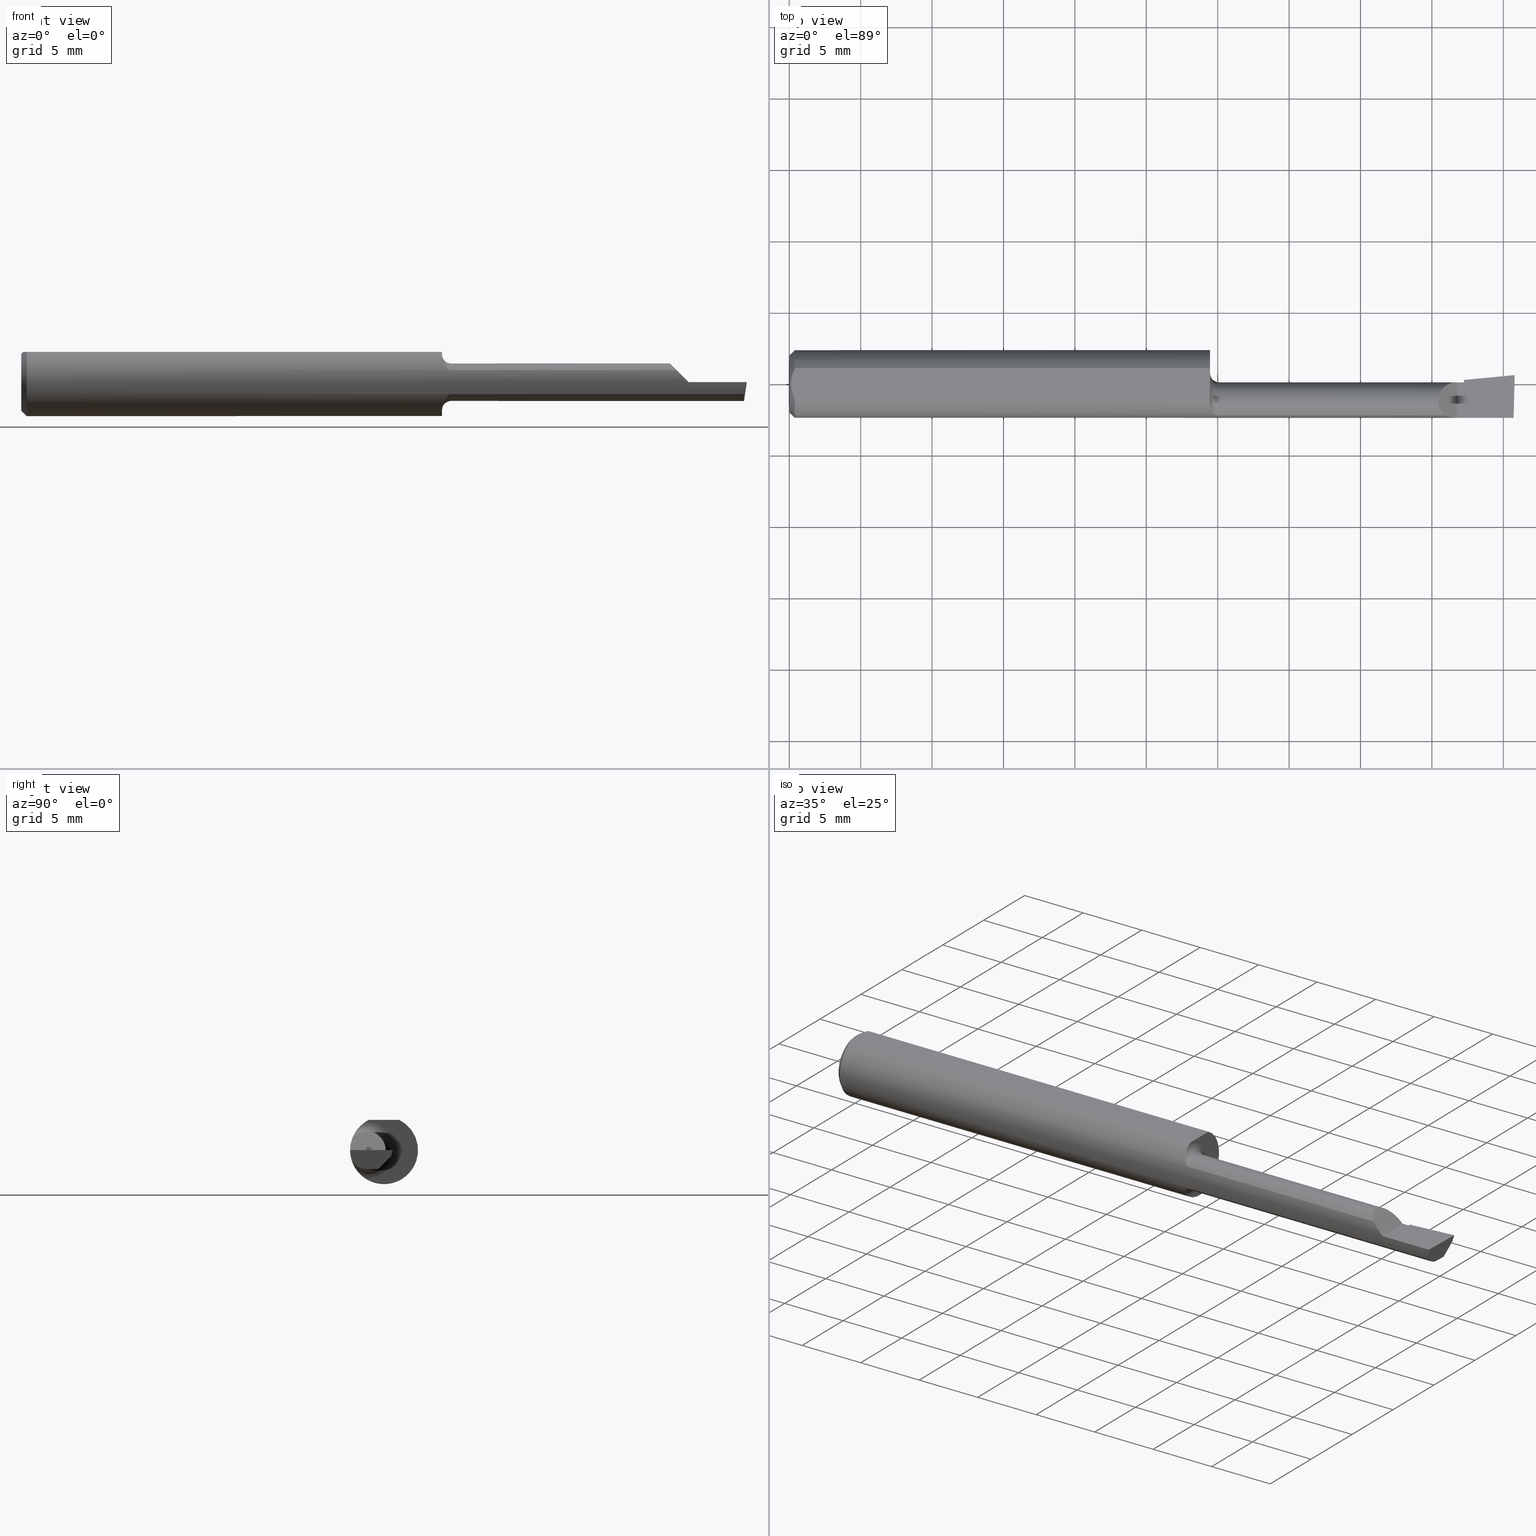
[diagram: canonical four-view strip — front | top / right | iso, engineering-drawing reading convention]
A machine part, canonical four-view strip (front | top / right | iso — engineering-drawing reading convention). The complete STEP part file that produces these views, byte-faithful:
ISO-10303-21;
HEADER;
FILE_DESCRIPTION (( 'STEP AP214' ),
    '1' );
FILE_NAME ('B120800.STEP',
    '2019-07-25T17:22:46',
    ( '' ),
    ( '' ),
    'SwSTEP 2.0',
    'SolidWorks 2018',
    '' );
FILE_SCHEMA (( 'AUTOMOTIVE_DESIGN' ));
ENDSEC;

DATA;
#1 = VERTEX_POINT ( 'NONE', #101 ) ;
#2 = DIRECTION ( 'NONE',  ( -1.000000000000000000, -0.0000000000000000000, -0.0000000000000000000 ) ) ;
#3 = DIRECTION ( 'NONE',  ( 0.0000000000000000000, 0.0000000000000000000, 1.000000000000000000 ) ) ;
#4 = CARTESIAN_POINT ( 'NONE',  ( 1.169440191089343717, -0.08177118545005539196, -0.04577359403162507140 ) ) ;
#5 = CARTESIAN_POINT ( 'NONE',  ( 0.01499999999999999598, 0.04209513035969837669, 0.08360000000000000764 ) ) ;
#6 =( GEOMETRIC_REPRESENTATION_CONTEXT ( 3 ) GLOBAL_UNCERTAINTY_ASSIGNED_CONTEXT ( ( #519 ) ) GLOBAL_UNIT_ASSIGNED_CONTEXT ( ( #228, #389, #536 ) ) REPRESENTATION_CONTEXT ( 'NONE', 'WORKASPACE' ) );
#7 = B_SPLINE_CURVE_WITH_KNOTS ( 'NONE', 3,
 ( #384, #124, #79, #518, #263, #30, #340, #387, #69, #390, #571, #341 ),
 .UNSPECIFIED., .F., .F.,
 ( 4, 2, 2, 2, 2, 4 ),
 ( 1.138943784590839172E-05, 0.0004225593089546699843, 0.0008337291800634315719, 0.001244899051172193485, 0.001450483986726571785, 0.001656068922280950302 ),
 .UNSPECIFIED. ) ;
#8 = CARTESIAN_POINT ( 'NONE',  ( 1.522499999999999964, -0.08761684210526324290, -0.03292793615611784575 ) ) ;
#9 = CARTESIAN_POINT ( 'NONE',  ( 1.859999999999999876, 0.005698073100777827603, -0.01700000000000000469 ) ) ;
#10 = ORIENTED_EDGE ( 'NONE', *, *, #395, .F. ) ;
#11 = EDGE_CURVE ( 'NONE', #537, #286, #163, .T. ) ;
#12 = PLANE ( 'NONE',  #86 ) ;
#13 = ORIENTED_EDGE ( 'NONE', *, *, #233, .T. ) ;
#14 =( BOUNDED_CURVE ( )  B_SPLINE_CURVE ( 3, ( #97, #457, #51, #459 ),
 .UNSPECIFIED., .F., .T. ) 
 B_SPLINE_CURVE_WITH_KNOTS ( ( 4, 4 ),
 ( 1.001259756638107623, 1.360746882514813461 ),
 .UNSPECIFIED. ) 
 CURVE ( )  GEOMETRIC_REPRESENTATION_ITEM ( )  RATIONAL_B_SPLINE_CURVE ( ( 1.000000000000000000, 0.9892597135044076673, 0.9892597135044076673, 1.000000000000000000 ) ) 
 REPRESENTATION_ITEM ( '' )  );
#15 = DIRECTION ( 'NONE',  ( -0.02617694830785904925, -0.9996573249755575929, -4.246274422243611542E-17 ) ) ;
#16 = CARTESIAN_POINT ( 'NONE',  ( 2.009953961983671267, 0.02535845752520198698, -6.829619984160658046E-17 ) ) ;
#17 = CONICAL_SURFACE ( 'NONE', #331, 0.09360000000000001652, 0.7853981633974601584 ) ;
#18 = CARTESIAN_POINT ( 'NONE',  ( 2.000000000000000000, -0.04749999999999999362, -0.05189999999999998087 ) ) ;
#19 = ORIENTED_EDGE ( 'NONE', *, *, #486, .T. ) ;
#20 = VERTEX_POINT ( 'NONE', #505 ) ;
#21 = DIRECTION ( 'NONE',  ( -2.972230601656782035E-18, -0.6963153109074924352, -0.7177360153954948085 ) ) ;
#22 = EDGE_CURVE ( 'NONE', #20, #489, #39, .T. ) ;
#23 = VECTOR ( 'NONE', #142, 39.37007874015748854 ) ;
#24 = FILL_AREA_STYLE_COLOUR ( '', #520 ) ;
#25 = VERTEX_POINT ( 'NONE', #54 ) ;
#26 = VERTEX_POINT ( 'NONE', #368 ) ;
#27 = EDGE_CURVE ( 'NONE', #149, #20, #403, .T. ) ;
#28 = CIRCLE ( 'NONE', #503, 0.05189999999999993924 ) ;
#29 = EDGE_CURVE ( 'NONE', #453, #128, #327, .T. ) ;
#30 = CARTESIAN_POINT ( 'NONE',  ( 1.167170565689160888, -0.07921348361094636414, 0.05012018735743086623 ) ) ;
#31 = PLANE ( 'NONE',  #132 ) ;
#32 = ORIENTED_EDGE ( 'NONE', *, *, #420, .T. ) ;
#33 = ORIENTED_EDGE ( 'NONE', *, *, #454, .F. ) ;
#34 = VECTOR ( 'NONE', #480, 39.37007874015748143 ) ;
#35 = ORIENTED_EDGE ( 'NONE', *, *, #190, .F. ) ;
#36 = AXIS2_PLACEMENT_3D ( 'NONE', #556, #376, #332 ) ;
#37 = DIRECTION ( 'NONE',  ( 0.0000000000000000000, -1.000000000000000000, 0.0000000000000000000 ) ) ;
#38 = DIRECTION ( 'NONE',  ( -1.000000000000000000, 4.268512490100411279E-18, -0.0000000000000000000 ) ) ;
#39 = CIRCLE ( 'NONE', #428, 0.09360000000000001652 ) ;
#40 = CARTESIAN_POINT ( 'NONE',  ( 2.000000000000000000, -0.2500000000000000555, -6.829619984160658046E-17 ) ) ;
#41 = ORIENTED_EDGE ( 'NONE', *, *, #45, .F. ) ;
#42 = AXIS2_PLACEMENT_3D ( 'NONE', #66, #165, #298 ) ;
#43 = CARTESIAN_POINT ( 'NONE',  ( 1.167214764395544391, -0.07927709071642491390, -0.05002561729526815160 ) ) ;
#44 = CIRCLE ( 'NONE', #382, 0.09360000000000001652 ) ;
#45 = EDGE_CURVE ( 'NONE', #1, #172, #569, .T. ) ;
#46 = CARTESIAN_POINT ( 'NONE',  ( 2.000000000000000000, -0.04749999999999999362, -0.05189999999999998087 ) ) ;
#47 = ADVANCED_FACE ( 'NONE', ( #260 ), #12, .F. ) ;
#48 = LINE ( 'NONE', #303, #516 ) ;
#49 = CARTESIAN_POINT ( 'NONE',  ( 0.0000000000000000000, 0.0000000000000000000, 0.0000000000000000000 ) ) ;
#50 = EDGE_LOOP ( 'NONE', ( #81, #95, #178, #19, #264, #362 ) ) ;
#51 = CARTESIAN_POINT ( 'NONE',  ( 1.995524967455633902, -0.09360000000000001652, -0.01127681812736613248 ) ) ;
#52 = CARTESIAN_POINT ( 'NONE',  ( 1.522499999999999964, -0.08761684210526324290, 0.03292793615611784575 ) ) ;
#53 = VECTOR ( 'NONE', #415, 39.37007874015748143 ) ;
#54 = CARTESIAN_POINT ( 'NONE',  ( 1.840000000000000080, 0.004399999999999856283, 1.959434878635762025E-17 ) ) ;
#55 = CARTESIAN_POINT ( 'NONE',  ( 2.000000000000002220, 0.02440000000001009070, 3.223447241508514858E-14 ) ) ;
#56 = AXIS2_PLACEMENT_3D ( 'NONE', #49, #413, #411 ) ;
#57 = ORIENTED_EDGE ( 'NONE', *, *, #420, .F. ) ;
#58 = EDGE_CURVE ( 'NONE', #286, #537, #444, .T. ) ;
#59 = DIRECTION ( 'NONE',  ( 0.0000000000000000000, 0.0000000000000000000, 1.000000000000000000 ) ) ;
#60 = PRODUCT ( 'B120800', 'B120800', '', ( #576 ) ) ;
#61 = CLOSED_SHELL ( 'NONE', ( #284, #589, #497, #96, #407, #195, #183, #99, #237, #316, #398, #443, #199, #138, #500, #244, #47 ) ) ;
#62 = CARTESIAN_POINT ( 'NONE',  ( 1.859999999999999876, -0.04749999999999999362, -0.05189999999999998087 ) ) ;
#63 = LINE ( 'NONE', #62, #53 ) ;
#64 = CARTESIAN_POINT ( 'NONE',  ( 1.807072063843881971, -0.08761684210526325678, 0.03292793615611783187 ) ) ;
#65 = DIRECTION ( 'NONE',  ( -1.000000000000000000, 4.268512490100411279E-18, 0.0000000000000000000 ) ) ;
#66 = CARTESIAN_POINT ( 'NONE',  ( 2.010452112766631050, 0.02018496383838343580, -0.01700000000000000122 ) ) ;
#67 = VECTOR ( 'NONE', #584, 39.37007874015748143 ) ;
#68 = VECTOR ( 'NONE', #324, 39.37007874015748143 ) ;
#69 = CARTESIAN_POINT ( 'NONE',  ( 1.175620214409630604, -0.08570056439211902466, 0.03767842731144282337 ) ) ;
#70 = EDGE_LOOP ( 'NONE', ( #305, #338 ) ) ;
#71 = CARTESIAN_POINT ( 'NONE',  ( 0.0000000000000000000, 0.0000000000000000000, 0.0000000000000000000 ) ) ;
#72 =( GEOMETRIC_REPRESENTATION_CONTEXT ( 3 ) GLOBAL_UNCERTAINTY_ASSIGNED_CONTEXT ( ( #456 ) ) GLOBAL_UNIT_ASSIGNED_CONTEXT ( ( #429, #478, #214 ) ) REPRESENTATION_CONTEXT ( 'NONE', 'WORKASPACE' ) );
#73 = EDGE_CURVE ( 'NONE', #400, #26, #527, .T. ) ;
#74 =( LENGTH_UNIT ( ) NAMED_UNIT ( * ) SI_UNIT ( $, .METRE. ) );
#75 =( CONVERSION_BASED_UNIT ( 'INCH', #265 ) LENGTH_UNIT ( ) NAMED_UNIT ( #279 ) );
#76 = ORIENTED_EDGE ( 'NONE', *, *, #22, .T. ) ;
#77 = SURFACE_SIDE_STYLE ('',( #408 ) ) ;
#78 = UNCERTAINTY_MEASURE_WITH_UNIT (LENGTH_MEASURE( 1.000000000000000082E-05 ), #75, 'distance_accuracy_value', 'NONE');
#79 = CARTESIAN_POINT ( 'NONE',  ( 1.160447921123109349, -0.06231628215915101937, 0.07004382716008761278 ) ) ;
#80 = FACE_OUTER_BOUND ( 'NONE', #156, .T. ) ;
#81 = ORIENTED_EDGE ( 'NONE', *, *, #29, .T. ) ;
#82 = ORIENTED_EDGE ( 'NONE', *, *, #525, .T. ) ;
#83 = ORIENTED_EDGE ( 'NONE', *, *, #448, .T. ) ;
#84 = EDGE_CURVE ( 'NONE', #282, #140, #193, .T. ) ;
#85 = FACE_OUTER_BOUND ( 'NONE', #345, .T. ) ;
#86 = AXIS2_PLACEMENT_3D ( 'NONE', #418, #201, #504 ) ;
#87 = CIRCLE ( 'NONE', #247, 0.07689999999999989899 ) ;
#88 = ORIENTED_EDGE ( 'NONE', *, *, #514, .T. ) ;
#89 = AXIS2_PLACEMENT_3D ( 'NONE', #203, #374, #161 ) ;
#90 = LINE ( 'NONE', #561, #544 ) ;
#91 = CARTESIAN_POINT ( 'NONE',  ( 0.0000000000000000000, 0.0000000000000000000, 0.0000000000000000000 ) ) ;
#92 = CARTESIAN_POINT ( 'NONE',  ( 1.991784456001939541, -0.07759022324566731965, -0.04514359047872656266 ) ) ;
#93 = VECTOR ( 'NONE', #291, 39.37007874015748143 ) ;
#94 = CARTESIAN_POINT ( 'NONE',  ( 1.992583253560377576, -0.01539402727707556325, -0.05189999999999998087 ) ) ;
#95 = ORIENTED_EDGE ( 'NONE', *, *, #399, .F. ) ;
#96 = ADVANCED_FACE ( 'NONE', ( #546 ), #104, .F. ) ;
#97 = CARTESIAN_POINT ( 'NONE',  ( 1.993022307651335812, -0.08761684210526324290, -0.03292793615611784575 ) ) ;
#98 = CARTESIAN_POINT ( 'NONE',  ( 1.859999999999999876, -0.2500000000000000555, 8.608030207862190690E-18 ) ) ;
#99 = ADVANCED_FACE ( 'NONE', ( #488 ), #373, .F. ) ;
#100 = CARTESIAN_POINT ( 'NONE',  ( 1.859999999999999876, -0.02123896744732974712, -0.04476570304672526646 ) ) ;
#101 = CARTESIAN_POINT ( 'NONE',  ( 1.859999999999999876, 0.004399999999999983785, 1.030335658007946834E-15 ) ) ;
#102 = AXIS2_PLACEMENT_3D ( 'NONE', #294, #65, #513 ) ;
#103 = ORIENTED_EDGE ( 'NONE', *, *, #587, .F. ) ;
#104 = PLANE ( 'NONE',  #582 ) ;
#105 = VERTEX_POINT ( 'NONE', #559 ) ;
#106 = ORIENTED_EDGE ( 'NONE', *, *, #262, .F. ) ;
#107 = CARTESIAN_POINT ( 'NONE',  ( 0.009539353699420828961, -0.02875682547511369466, 0.08360000000000000764 ) ) ;
#108 = DIRECTION ( 'NONE',  ( -0.7071067811865516806, 0.0000000000000000000, 0.7071067811865433539 ) ) ;
#109 = DIRECTION ( 'NONE',  ( -1.000000000000000000, -0.0000000000000000000, -0.0000000000000000000 ) ) ;
#110 = LINE ( 'NONE', #240, #23 ) ;
#111 = FACE_OUTER_BOUND ( 'NONE', #336, .T. ) ;
#112 = DIRECTION ( 'NONE',  ( 1.000000000000000000, -4.268512490100411279E-18, 0.0000000000000000000 ) ) ;
#113 = ORIENTED_EDGE ( 'NONE', *, *, #117, .T. ) ;
#114 = DIRECTION ( 'NONE',  ( 0.0000000000000000000, -1.000000000000000000, 0.0000000000000000000 ) ) ;
#115 = ORIENTED_EDGE ( 'NONE', *, *, #313, .F. ) ;
#116 = CARTESIAN_POINT ( 'NONE',  ( 1.991748187365210754, -0.04728391868154190048, -0.05189999999999998087 ) ) ;
#117 = EDGE_CURVE ( 'NONE', #564, #25, #314, .T. ) ;
#118 = DIRECTION ( 'NONE',  ( 0.0000000000000000000, 1.000000000000000000, 0.0000000000000000000 ) ) ;
#119 =( LENGTH_UNIT ( ) NAMED_UNIT ( * ) SI_UNIT ( $, .METRE. ) );
#120 = EDGE_LOOP ( 'NONE', ( #103, #292, #157, #335, #300 ) ) ;
#121 = CARTESIAN_POINT ( 'NONE',  ( 0.0000000000000000000, 1.054420894065869177E-17, 0.07859999999999965625 ) ) ;
#122 = AXIS2_PLACEMENT_3D ( 'NONE', #231, #187, #442 ) ;
#123 = VECTOR ( 'NONE', #21, 39.37007874015748854 ) ;
#124 = CARTESIAN_POINT ( 'NONE',  ( 1.160000000000000364, -0.05819923687593512446, 0.07350986718065719017 ) ) ;
#125 = TOROIDAL_SURFACE ( 'NONE', #36, 0.07689999999999989899, 0.02499999999999993894 ) ;
#126 = CARTESIAN_POINT ( 'NONE',  ( 1.807072063843881971, -0.08761684210526325678, 0.03292793615611783187 ) ) ;
#127 = ORIENTED_EDGE ( 'NONE', *, *, #167, .T. ) ;
#128 = VERTEX_POINT ( 'NONE', #509 ) ;
#129 = DIRECTION ( 'NONE',  ( 1.000000000000000000, 0.0000000000000000000, 0.0000000000000000000 ) ) ;
#130 = VERTEX_POINT ( 'NONE', #562 ) ;
#131 = PRODUCT_DEFINITION_SHAPE ( 'NONE', 'NONE',  #573 ) ;
#132 = AXIS2_PLACEMENT_3D ( 'NONE', #40, #270, #272 ) ;
#133 = DIRECTION ( 'NONE',  ( -4.268512490100412049E-18, -1.000000000000000000, 0.0000000000000000000 ) ) ;
#134 = VERTEX_POINT ( 'NONE', #9 ) ;
#135 = AXIS2_PLACEMENT_3D ( 'NONE', #349, #350, #567 ) ;
#136 = EDGE_LOOP ( 'NONE', ( #241, #508, #540, #392 ) ) ;
#137 = B_SPLINE_CURVE_WITH_KNOTS ( 'NONE', 3,
 ( #552, #506, #107, #511, #151, #472 ),
 .UNSPECIFIED., .F., .F.,
 ( 4, 2, 4 ),
 ( 0.005785415439423114564, 0.006333348270144337384, 0.006881281100865560205 ),
 .UNSPECIFIED. ) ;
#138 = ADVANCED_FACE ( 'NONE', ( #309 ), #463, .T. ) ;
#139 = CARTESIAN_POINT ( 'NONE',  ( 2.215357982367770727E-19, 0.004399999999999949958, 1.030335658007946046E-15 ) ) ;
#140 = VERTEX_POINT ( 'NONE', #64 ) ;
#141 = EDGE_LOOP ( 'NONE', ( #517, #553, #541 ) ) ;
#142 = DIRECTION ( 'NONE',  ( 0.02617694830785904231, 0.9996573249755575929, -1.459184416195337162E-17 ) ) ;
#143 = EDGE_CURVE ( 'NONE', #172, #354, #299, .T. ) ;
#144 = CARTESIAN_POINT ( 'NONE',  ( 0.0000000000000000000, -0.04209513035969835587, 0.08360000000000000764 ) ) ;
#145 = CARTESIAN_POINT ( 'NONE',  ( 0.01499999999999999598, 0.0000000000000000000, 0.0000000000000000000 ) ) ;
#146 = DIMENSIONAL_EXPONENTS ( 1.000000000000000000, 0.0000000000000000000, 0.0000000000000000000, 0.0000000000000000000, 0.0000000000000000000, 0.0000000000000000000, 0.0000000000000000000 ) ;
#147 = EDGE_CURVE ( 'NONE', #475, #570, #87, .T. ) ;
#148 = CARTESIAN_POINT ( 'NONE',  ( 0.005000000000000225618, 0.007308422719211825694, 0.08360000000000000764 ) ) ;
#149 = VERTEX_POINT ( 'NONE', #474 ) ;
#150 = ORIENTED_EDGE ( 'NONE', *, *, #27, .T. ) ;
#151 = CARTESIAN_POINT ( 'NONE',  ( 0.005000000000000227353, -0.007328888879231044290, 0.08360000000000000764 ) ) ;
#152 = CARTESIAN_POINT ( 'NONE',  ( 1.840000000000000080, -0.2500000000000000555, 1.959434878635762025E-17 ) ) ;
#153 = DIRECTION ( 'NONE',  ( 0.0000000000000000000, -1.000000000000000000, 0.0000000000000000000 ) ) ;
#154 = CIRCLE ( 'NONE', #197, 0.05189999999999998781 ) ;
#155 = CARTESIAN_POINT ( 'NONE',  ( 1.840000000000000080, -0.2500000000000000555, 1.959434878635762025E-17 ) ) ;
#156 = EDGE_LOOP ( 'NONE', ( #592, #276, #416, #254, #328, #378, #577, #285, #115, #320, #88, #369, #423 ) ) ;
#157 = ORIENTED_EDGE ( 'NONE', *, *, #492, .T. ) ;
#158 = FACE_OUTER_BOUND ( 'NONE', #164, .T. ) ;
#159 = CARTESIAN_POINT ( 'NONE',  ( 1.859999999999999876, -0.04749999999999999362, 0.0000000000000000000 ) ) ;
#160 = DIRECTION ( 'NONE',  ( -0.9953961983671800740, -0.09584575252021031166, 0.0000000000000000000 ) ) ;
#161 = DIRECTION ( 'NONE',  ( 4.268512490100411279E-18, 1.000000000000000000, 0.0000000000000000000 ) ) ;
#162 = PLANE ( 'NONE',  #437 ) ;
#163 = CIRCLE ( 'NONE', #56, 0.07859999999999965625 ) ;
#164 = EDGE_LOOP ( 'NONE', ( #535, #32, #306, #542 ) ) ;
#165 = DIRECTION ( 'NONE',  ( -0.06894566448119622548, 0.7160281025913035613, -0.6946583704589933683 ) ) ;
#166 = DIRECTION ( 'NONE',  ( 0.9953961983671787417, 0.09584575252022461966, -5.467869873542577569E-16 ) ) ;
#167 = EDGE_CURVE ( 'NONE', #510, #134, #48, .T. ) ;
#168 = DIRECTION ( 'NONE',  ( -2.972230601656782035E-18, -0.6963153109074924352, -0.7177360153954948085 ) ) ;
#169 = DIRECTION ( 'NONE',  ( 1.000000000000000000, -4.268512490100411279E-18, 0.0000000000000000000 ) ) ;
#170 = ORIENTED_EDGE ( 'NONE', *, *, #262, .T. ) ;
#171 = CARTESIAN_POINT ( 'NONE',  ( 1.859999999999999876, 0.01091953325234439054, 0.0000000000000000000 ) ) ;
#172 = VERTEX_POINT ( 'NONE', #533 ) ;
#173 = VECTOR ( 'NONE', #168, 39.37007874015748854 ) ;
#174 = LINE ( 'NONE', #46, #352 ) ;
#175 = MANIFOLD_SOLID_BREP ( 'Extrude7', #61 ) ;
#176 = VECTOR ( 'NONE', #166, 39.37007874015748143 ) ;
#177 = EDGE_CURVE ( 'NONE', #564, #140, #184, .T. ) ;
#178 = ORIENTED_EDGE ( 'NONE', *, *, #186, .T. ) ;
#179 = PLANE ( 'NONE',  #393 ) ;
#180 = VECTOR ( 'NONE', #526, 39.37007874015748143 ) ;
#181 = EDGE_CURVE ( 'NONE', #105, #475, #361, .T. ) ;
#182 = DIRECTION ( 'NONE',  ( -1.000000000000000000, 4.268512490100411279E-18, -0.0000000000000000000 ) ) ;
#183 = ADVANCED_FACE ( 'NONE', ( #483 ), #31, .F. ) ;
#184 =( BOUNDED_CURVE ( )  B_SPLINE_CURVE ( 3, ( #531, #391, #307, #126 ),
 .UNSPECIFIED., .F., .T. ) 
 B_SPLINE_CURVE_WITH_KNOTS ( ( 4, 4 ),
 ( 4.712388980384689674, 5.071876106261395734 ),
 .UNSPECIFIED. ) 
 CURVE ( )  GEOMETRIC_REPRESENTATION_ITEM ( )  RATIONAL_B_SPLINE_CURVE ( ( 1.000000000000000000, 0.9892597135044076673, 0.9892597135044076673, 1.000000000000000000 ) ) 
 REPRESENTATION_ITEM ( '' )  );
#185 = PLANE ( 'NONE',  #346 ) ;
#186 = EDGE_CURVE ( 'NONE', #400, #510, #250, .T. ) ;
#187 = DIRECTION ( 'NONE',  ( 1.000000000000000000, -4.268512490100411279E-18, 0.0000000000000000000 ) ) ;
#188 = CARTESIAN_POINT ( 'NONE',  ( 0.005981829149300843529, 0.01454044632356567453, 0.08360000000000003539 ) ) ;
#189 = CARTESIAN_POINT ( 'NONE',  ( 1.160000000000000142, -0.05372210526315807089, -0.07664786628533221124 ) ) ;
#190 = EDGE_CURVE ( 'NONE', #583, #275, #230, .T. ) ;
#191 = CARTESIAN_POINT ( 'NONE',  ( 1.996868812538701299, -0.01498137488205841111, -0.05189999999999998087 ) ) ;
#192 = LINE ( 'NONE', #539, #67 ) ;
#193 = LINE ( 'NONE', #52, #452 ) ;
#194 = DIRECTION ( 'NONE',  ( -1.000000000000000000, -0.0000000000000000000, -0.0000000000000000000 ) ) ;
#195 = ADVANCED_FACE ( 'NONE', ( #111 ), #179, .F. ) ;
#196 = CARTESIAN_POINT ( 'NONE',  ( 1.996910061254835833, -0.09360000000000009979, -6.663204267364653954E-17 ) ) ;
#197 = AXIS2_PLACEMENT_3D ( 'NONE', #588, #182, #37 ) ;
#198 = CARTESIAN_POINT ( 'NONE',  ( 1.807072063843881971, -0.08761684210526325678, 0.03292793615611783187 ) ) ;
#199 = ADVANCED_FACE ( 'NONE', ( #451 ), #534, .T. ) ;
#200 = EDGE_CURVE ( 'NONE', #25, #1, #223, .T. ) ;
#201 = DIRECTION ( 'NONE',  ( -0.9922060308645500593, 0.02598182930467936302, 0.1218693434051320162 ) ) ;
#202 = CIRCLE ( 'NONE', #485, 0.05189999999999998781 ) ;
#203 = CARTESIAN_POINT ( 'NONE',  ( 1.160000000000000142, 0.02939999999999991231, 0.0000000000000000000 ) ) ;
#204 = ORIENTED_EDGE ( 'NONE', *, *, #186, .F. ) ;
#205 = ORIENTED_EDGE ( 'NONE', *, *, #224, .T. ) ;
#206 = CARTESIAN_POINT ( 'NONE',  ( 0.01499999999999999944, -0.04209513035969835587, 0.08360000000000000764 ) ) ;
#207 = DIRECTION ( 'NONE',  ( -2.429359850419095604E-34, -4.268512490100410663E-17, 1.000000000000000000 ) ) ;
#208 = CARTESIAN_POINT ( 'NONE',  ( 1.859999999999999876, -0.01401885001904128354, -0.03732347359622881916 ) ) ;
#209 = DIRECTION ( 'NONE',  ( -1.000000000000000000, -0.0000000000000000000, -0.0000000000000000000 ) ) ;
#210 = ORIENTED_EDGE ( 'NONE', *, *, #557, .T. ) ;
#211 = ORIENTED_EDGE ( 'NONE', *, *, #216, .F. ) ;
#212 = CARTESIAN_POINT ( 'NONE',  ( 0.0000000000000000000, 0.04209513035969837669, 0.08360000000000000764 ) ) ;
#213 = CARTESIAN_POINT ( 'NONE',  ( 1.160000000000000142, -0.05372210526315807089, -0.07664786628533221124 ) ) ;
#214 =( NAMED_UNIT ( * ) SI_UNIT ( $, .STERADIAN. ) SOLID_ANGLE_UNIT ( ) );
#215 = ORIENTED_EDGE ( 'NONE', *, *, #147, .F. ) ;
#216 = EDGE_CURVE ( 'NONE', #347, #564, #192, .T. ) ;
#217 = ORIENTED_EDGE ( 'NONE', *, *, #301, .T. ) ;
#218 = EDGE_LOOP ( 'NONE', ( #401, #555, #170, #83 ) ) ;
#219 = AXIS2_PLACEMENT_3D ( 'NONE', #71, #351, #129 ) ;
#220 = LINE ( 'NONE', #380, #288 ) ;
#221 = SURFACE_STYLE_USAGE ( .BOTH. , #77 ) ;
#222 = FILL_AREA_STYLE_COLOUR ( '', #367 ) ;
#223 = LINE ( 'NONE', #139, #515 ) ;
#224 = EDGE_CURVE ( 'NONE', #1, #583, #154, .T. ) ;
#225 = ORIENTED_EDGE ( 'NONE', *, *, #348, .F. ) ;
#226 = EDGE_LOOP ( 'NONE', ( #269, #127, #460, #321 ) ) ;
#227 = PRESENTATION_STYLE_ASSIGNMENT (( #342 ) ) ;
#228 =( CONVERSION_BASED_UNIT ( 'INCH', #259 ) LENGTH_UNIT ( ) NAMED_UNIT ( #146 ) );
#229 = AXIS2_PLACEMENT_3D ( 'NONE', #396, #38, #133 ) ;
#230 = LINE ( 'NONE', #356, #239 ) ;
#231 = CARTESIAN_POINT ( 'NONE',  ( 1.160000000000000142, 0.0000000000000000000, 0.0000000000000000000 ) ) ;
#232 = ORIENTED_EDGE ( 'NONE', *, *, #177, .F. ) ;
#233 = EDGE_CURVE ( 'NONE', #275, #445, #202, .T. ) ;
#234 = ADVANCED_BREP_SHAPE_REPRESENTATION ( 'B120800', ( #175, #219 ), #482 ) ;
#235 = ORIENTED_EDGE ( 'NONE', *, *, #538, .F. ) ;
#236 = CIRCLE ( 'NONE', #524, 0.09360000000000001652 ) ;
#237 = ADVANCED_FACE ( 'NONE', ( #590 ), #359, .F. ) ;
#238 = DIRECTION ( 'NONE',  ( 0.0000000000000000000, 0.0000000000000000000, -1.000000000000000000 ) ) ;
#239 = VECTOR ( 'NONE', #543, 39.37007874015748854 ) ;
#240 = CARTESIAN_POINT ( 'NONE',  ( 1.992819506803470420, -0.2498119721683277061, -6.435184055121686760E-17 ) ) ;
#241 = ORIENTED_EDGE ( 'NONE', *, *, #45, .T. ) ;
#242 = ORIENTED_EDGE ( 'NONE', *, *, #587, .T. ) ;
#243 = DIRECTION ( 'NONE',  ( -1.000000000000000000, 4.268512490100411279E-18, 0.0000000000000000000 ) ) ;
#244 = ADVANCED_FACE ( 'NONE', ( #318 ), #185, .F. ) ;
#245 = CARTESIAN_POINT ( 'NONE',  ( 0.0000000000000000000, 0.0000000000000000000, 0.0000000000000000000 ) ) ;
#246 = CARTESIAN_POINT ( 'NONE',  ( 1.993022307651335812, -0.08761684210526324290, -0.03292793615611784575 ) ) ;
#247 = AXIS2_PLACEMENT_3D ( 'NONE', #344, #295, #114 ) ;
#248 = DIRECTION ( 'NONE',  ( 1.000000000000000000, -4.268512490100411279E-18, 0.0000000000000000000 ) ) ;
#249 = MECHANICAL_DESIGN_GEOMETRIC_PRESENTATION_REPRESENTATION (  '', ( #522 ), #6 ) ;
#250 = LINE ( 'NONE', #581, #353 ) ;
#251 = PLANE ( 'NONE',  #102 ) ;
#252 = ORIENTED_EDGE ( 'NONE', *, *, #557, .F. ) ;
#253 = DIRECTION ( 'NONE',  ( -0.9953961983671800740, -0.09584575252021031166, -2.116984158397002112E-18 ) ) ;
#254 = ORIENTED_EDGE ( 'NONE', *, *, #177, .T. ) ;
#255 = EDGE_LOOP ( 'NONE', ( #502, #593 ) ) ;
#256 = CARTESIAN_POINT ( 'NONE',  ( 1.859999999999999876, -0.01401885001904128354, -0.03732347359622881916 ) ) ;
#257 = APPLICATION_CONTEXT ( 'automotive_design' ) ;
#258 = CARTESIAN_POINT ( 'NONE',  ( 1.859999999999999876, -0.001959391508022435748, -0.02489303071504986309 ) ) ;
#259 = LENGTH_MEASURE_WITH_UNIT ( LENGTH_MEASURE( 0.02539999999999999897 ), #487 );
#260 = FACE_OUTER_BOUND ( 'NONE', #50, .T. ) ;
#261 = FACE_OUTER_BOUND ( 'NONE', #136, .T. ) ;
#262 = EDGE_CURVE ( 'NONE', #128, #445, #174, .T. ) ;
#263 = CARTESIAN_POINT ( 'NONE',  ( 1.163573898438561072, -0.07331853621787791375, 0.05840549129485480412 ) ) ;
#264 = ORIENTED_EDGE ( 'NONE', *, *, #290, .F. ) ;
#265 = LENGTH_MEASURE_WITH_UNIT ( LENGTH_MEASURE( 0.02539999999999999897 ), #119 );
#266 = EDGE_CURVE ( 'NONE', #377, #570, #449, .T. ) ;
#267 = DIRECTION ( 'NONE',  ( 0.0000000000000000000, -1.189000693621284344E-16, -1.000000000000000000 ) ) ;
#268 = EDGE_CURVE ( 'NONE', #172, #134, #471, .T. ) ;
#269 = ORIENTED_EDGE ( 'NONE', *, *, #486, .F. ) ;
#270 = DIRECTION ( 'NONE',  ( -5.493159289247764363E-16, 0.0000000000000000000, -1.000000000000000000 ) ) ;
#271 = CARTESIAN_POINT ( 'NONE',  ( 2.000000000000000000, 0.1436000000000000332, 0.08359999999999999376 ) ) ;
#272 = DIRECTION ( 'NONE',  ( -1.000000000000000000, 0.0000000000000000000, 5.493159289247764363E-16 ) ) ;
#273 = AXIS2_PLACEMENT_3D ( 'NONE', #91, #402, #238 ) ;
#274 = DIRECTION ( 'NONE',  ( 0.1053106618241606840, 0.6976485211320174740, 0.7086580314005240799 ) ) ;
#275 = VERTEX_POINT ( 'NONE', #100 ) ;
#276 = ORIENTED_EDGE ( 'NONE', *, *, #386, .T. ) ;
#277 = ORIENTED_EDGE ( 'NONE', *, *, #84, .T. ) ;
#278 = CARTESIAN_POINT ( 'NONE',  ( 0.0000000000000000000, 0.0000000000000000000, -0.07859999999999965625 ) ) ;
#279 = DIMENSIONAL_EXPONENTS ( 1.000000000000000000, 0.0000000000000000000, 0.0000000000000000000, 0.0000000000000000000, 0.0000000000000000000, 0.0000000000000000000, 0.0000000000000000000 ) ;
#280 = LINE ( 'NONE', #116, #330 ) ;
#281 = DIRECTION ( 'NONE',  ( 1.000000000000000000, 0.0000000000000000000, 0.0000000000000000000 ) ) ;
#282 = VERTEX_POINT ( 'NONE', #283 ) ;
#283 = CARTESIAN_POINT ( 'NONE',  ( 1.185000000000000053, -0.08761684210526317351, 0.03292793615611785268 ) ) ;
#284 = ADVANCED_FACE ( 'NONE', ( #532 ), #17, .T. ) ;
#285 = ORIENTED_EDGE ( 'NONE', *, *, #348, .T. ) ;
#286 = VERTEX_POINT ( 'NONE', #278 ) ;
#287 = CARTESIAN_POINT ( 'NONE',  ( 1.161744805833127003, -0.07033817883199360022, -0.06260462116753089112 ) ) ;
#288 = VECTOR ( 'NONE', #372, 39.37007874015748143 ) ;
#289 = DIRECTION ( 'NONE',  ( -0.7071067811865433539, 0.0000000000000000000, -0.7071067811865516806 ) ) ;
#290 = EDGE_CURVE ( 'NONE', #347, #354, #110, .T. ) ;
#291 = DIRECTION ( 'NONE',  ( 4.268512490100411279E-18, 1.000000000000000000, -2.344761903626518103E-33 ) ) ;
#292 = ORIENTED_EDGE ( 'NONE', *, *, #58, .F. ) ;
#293 = LINE ( 'NONE', #256, #173 ) ;
#294 = CARTESIAN_POINT ( 'NONE',  ( 1.859999999999999876, 0.01091953325234439054, 0.0000000000000000000 ) ) ;
#295 = DIRECTION ( 'NONE',  ( -1.000000000000000000, 4.268512490100411279E-18, -0.0000000000000000000 ) ) ;
#296 = AXIS2_PLACEMENT_3D ( 'NONE', #465, #109, #421 ) ;
#297 = AXIS2_PLACEMENT_3D ( 'NONE', #245, #209, #59 ) ;
#298 = DIRECTION ( 'NONE',  ( 0.0000000000000000000, 0.6963153109074924352, 0.7177360153954949196 ) ) ;
#299 = LINE ( 'NONE', #333, #176 ) ;
#300 = ORIENTED_EDGE ( 'NONE', *, *, #454, .T. ) ;
#301 = EDGE_CURVE ( 'NONE', #453, #377, #358, .T. ) ;
#302 = DIRECTION ( 'NONE',  ( -1.000000000000000000, 4.268512490100411279E-18, 0.0000000000000000000 ) ) ;
#303 = CARTESIAN_POINT ( 'NONE',  ( 2.010452112766631050, 0.02018496383838343580, -0.01700000000000000122 ) ) ;
#304 = SURFACE_SIDE_STYLE ('',( #558 ) ) ;
#305 = ORIENTED_EDGE ( 'NONE', *, *, #58, .T. ) ;
#306 = ORIENTED_EDGE ( 'NONE', *, *, #181, .T. ) ;
#307 = CARTESIAN_POINT ( 'NONE',  ( 1.817628038131437584, -0.09158396120079809188, 0.02237196186856219363 ) ) ;
#308 = PRODUCT_DEFINITION_CONTEXT ( 'detailed design', #434, 'design' ) ;
#309 = FACE_OUTER_BOUND ( 'NONE', #226, .T. ) ;
#310 = CARTESIAN_POINT ( 'NONE',  ( 1.859999999999999876, 0.007409801868102562639, -0.01142696330148601502 ) ) ;
#311 = PRODUCT_DEFINITION_FORMATION_WITH_SPECIFIED_SOURCE ( 'ANY', '', #60, .NOT_KNOWN. ) ;
#312 = DIRECTION ( 'NONE',  ( 1.000000000000000000, -4.268512490100411279E-18, 0.0000000000000000000 ) ) ;
#313 = EDGE_CURVE ( 'NONE', #489, #484, #44, .T. ) ;
#314 = LINE ( 'NONE', #152, #68 ) ;
#315 = ORIENTED_EDGE ( 'NONE', *, *, #492, .F. ) ;
#316 = ADVANCED_FACE ( 'NONE', ( #441 ), #394, .T. ) ;
#317 = DIRECTION ( 'NONE',  ( 0.0000000000000000000, 0.0000000000000000000, -1.000000000000000000 ) ) ;
#318 = FACE_OUTER_BOUND ( 'NONE', #255, .T. ) ;
#319 = CARTESIAN_POINT ( 'NONE',  ( 1.179715439975441704, -0.08710361937740859761, -0.03431086475148214382 ) ) ;
#320 = ORIENTED_EDGE ( 'NONE', *, *, #22, .F. ) ;
#321 = ORIENTED_EDGE ( 'NONE', *, *, #143, .T. ) ;
#322 = DIRECTION ( 'NONE',  ( 0.0000000000000000000, 0.0000000000000000000, 1.000000000000000000 ) ) ;
#323 = CARTESIAN_POINT ( 'NONE',  ( 1.160000000000000142, -0.06265771844804364499, -0.07038493979599887151 ) ) ;
#324 = DIRECTION ( 'NONE',  ( -0.0000000000000000000, 1.000000000000000000, -0.0000000000000000000 ) ) ;
#325 = DIRECTION ( 'NONE',  ( -1.000000000000000000, 4.268512490100411279E-18, -0.0000000000000000000 ) ) ;
#326 = VECTOR ( 'NONE', #253, 39.37007874015748854 ) ;
#327 =( BOUNDED_CURVE ( )  B_SPLINE_CURVE ( 3, ( #548, #92, #501, #365 ),
 .UNSPECIFIED., .F., .T. ) 
 B_SPLINE_CURVE_WITH_KNOTS ( ( 4, 4 ),
 ( 5.609734720198442659, 6.493234751459667997 ),
 .UNSPECIFIED. ) 
 CURVE ( )  GEOMETRIC_REPRESENTATION_ITEM ( )  RATIONAL_B_SPLINE_CURVE ( ( 1.000000000000000000, 0.9360032516356637800, 0.9360032516356637800, 1.000000000000000000 ) ) 
 REPRESENTATION_ITEM ( '' )  );
#328 = ORIENTED_EDGE ( 'NONE', *, *, #84, .F. ) ;
#329 = AXIS2_PLACEMENT_3D ( 'NONE', #155, #289, #108 ) ;
#330 = VECTOR ( 'NONE', #15, 39.37007874015748854 ) ;
#331 = AXIS2_PLACEMENT_3D ( 'NONE', #409, #496, #317 ) ;
#332 = DIRECTION ( 'NONE',  ( -4.268512490100411279E-18, -1.000000000000000000, 0.0000000000000000000 ) ) ;
#333 = CARTESIAN_POINT ( 'NONE',  ( 1.253289949938072301, -0.04749999999999999362, 3.418835249456273698E-16 ) ) ;
#334 = PLANE ( 'NONE',  #89 ) ;
#335 = ORIENTED_EDGE ( 'NONE', *, *, #313, .T. ) ;
#336 = EDGE_LOOP ( 'NONE', ( #57, #529, #468, #33, #225 ) ) ;
#337 = PLANE ( 'NONE',  #42 ) ;
#338 = ORIENTED_EDGE ( 'NONE', *, *, #11, .T. ) ;
#339 = VECTOR ( 'NONE', #499, 39.37007874015748854 ) ;
#340 = CARTESIAN_POINT ( 'NONE',  ( 1.169416114077285407, -0.08174975249068039407, 0.04581306663839099236 ) ) ;
#341 = CARTESIAN_POINT ( 'NONE',  ( 1.185000000000000053, -0.08761684210526317351, 0.03292793615611785268 ) ) ;
#342 = SURFACE_STYLE_USAGE ( .BOTH. , #304 ) ;
#343 = PRODUCT_RELATED_PRODUCT_CATEGORY ( 'part', '', ( #60 ) ) ;
#344 = CARTESIAN_POINT ( 'NONE',  ( 1.160000000000000142, -0.04749999999999999362, 0.0000000000000000000 ) ) ;
#345 = EDGE_LOOP ( 'NONE', ( #82, #210, #530, #215 ) ) ;
#346 = AXIS2_PLACEMENT_3D ( 'NONE', #446, #243, #547 ) ;
#347 = VERTEX_POINT ( 'NONE', #196 ) ;
#348 = EDGE_CURVE ( 'NONE', #105, #484, #549, .T. ) ;
#349 = CARTESIAN_POINT ( 'NONE',  ( 1.185000000000000053, -0.04749999999999999362, 0.0000000000000000000 ) ) ;
#350 = DIRECTION ( 'NONE',  ( -1.000000000000000000, 4.268512490100411279E-18, -0.0000000000000000000 ) ) ;
#351 = DIRECTION ( 'NONE',  ( 0.0000000000000000000, 0.0000000000000000000, 1.000000000000000000 ) ) ;
#352 = VECTOR ( 'NONE', #404, 39.37007874015748143 ) ;
#353 = VECTOR ( 'NONE', #274, 39.37007874015748143 ) ;
#354 = VERTEX_POINT ( 'NONE', #55 ) ;
#355 = ORIENTED_EDGE ( 'NONE', *, *, #117, .F. ) ;
#356 = CARTESIAN_POINT ( 'NONE',  ( 1.859999999999999876, -0.01401885001904128354, -0.03732347359622881916 ) ) ;
#357 = CARTESIAN_POINT ( 'NONE',  ( 1.859999999999999876, -0.04749999999999999362, 0.0000000000000000000 ) ) ;
#358 = LINE ( 'NONE', #8, #462 ) ;
#359 = PLANE ( 'NONE',  #273 ) ;
#360 = AXIS2_PLACEMENT_3D ( 'NONE', #16, #375, #466 ) ;
#361 = CIRCLE ( 'NONE', #122, 0.09360000000000001652 ) ;
#362 = ORIENTED_EDGE ( 'NONE', *, *, #386, .F. ) ;
#363 = CARTESIAN_POINT ( 'NONE',  ( 1.173947372900657982, -0.08481750515389899214, -0.03965032143108258855 ) ) ;
#364 = CARTESIAN_POINT ( 'NONE',  ( 1.840000000000000080, 0.004399999999999856283, 1.959434878635762025E-17 ) ) ;
#365 = CARTESIAN_POINT ( 'NONE',  ( 1.991742529076752977, -0.04749999999999999362, -0.05189999999999998087 ) ) ;
#366 = CARTESIAN_POINT ( 'NONE',  ( 0.01499999999999999598, 0.0000000000000000000, 0.0000000000000000000 ) ) ;
#367 = COLOUR_RGB ( '',0.7529411764705882248, 0.7529411764705882248, 0.7529411764705882248 ) ;
#368 = CARTESIAN_POINT ( 'NONE',  ( 1.859999999999999876, -0.02816034256933542396, -0.05189999999999998087 ) ) ;
#369 = ORIENTED_EDGE ( 'NONE', *, *, #579, .F. ) ;
#370 = CARTESIAN_POINT ( 'NONE',  ( 1.761940995672496957, -0.05057322517486231156, 0.07805900432750238760 ) ) ;
#371 = CIRCLE ( 'NONE', #135, 0.05189999999999990454 ) ;
#372 = DIRECTION ( 'NONE',  ( -4.268512490100411279E-18, -1.000000000000000000, 1.189000693621284344E-16 ) ) ;
#373 = PLANE ( 'NONE',  #329 ) ;
#374 = DIRECTION ( 'NONE',  ( 1.000000000000000000, -4.268512490100411279E-18, 0.0000000000000000000 ) ) ;
#375 = DIRECTION ( 'NONE',  ( -0.09165774897393336174, 0.9519021185660611062, -0.2923717047227312738 ) ) ;
#376 = DIRECTION ( 'NONE',  ( -1.000000000000000000, 4.268512490100411279E-18, -0.0000000000000000000 ) ) ;
#377 = VERTEX_POINT ( 'NONE', #412 ) ;
#378 = ORIENTED_EDGE ( 'NONE', *, *, #525, .F. ) ;
#379 = EDGE_LOOP ( 'NONE', ( #204, #447, #235, #35, #422, #554 ) ) ;
#380 = CARTESIAN_POINT ( 'NONE',  ( 1.160000000000000142, 0.1436000000000000332, 0.08359999999999999376 ) ) ;
#381 = LINE ( 'NONE', #208, #123 ) ;
#382 = AXIS2_PLACEMENT_3D ( 'NONE', #366, #450, #322 ) ;
#383 = CARTESIAN_POINT ( 'NONE',  ( 1.859999999999999876, -0.04749999999999999362, -0.05189999999999998087 ) ) ;
#384 = CARTESIAN_POINT ( 'NONE',  ( 1.160000000000000142, -0.05372210526315807089, 0.07664786628533221124 ) ) ;
#385 = STYLED_ITEM ( 'NONE', ( #227 ), #234 ) ;
#386 = EDGE_CURVE ( 'NONE', #453, #347, #14, .T. ) ;
#387 = CARTESIAN_POINT ( 'NONE',  ( 1.173927022897599537, -0.08480630317146348185, 0.03967462311308224410 ) ) ;
#388 = CARTESIAN_POINT ( 'NONE',  ( 1.840000000000000080, -0.09360000000000005815, 1.959434878635762025E-17 ) ) ;
#389 =( NAMED_UNIT ( * ) PLANE_ANGLE_UNIT ( ) SI_UNIT ( $, .RADIAN. ) );
#390 = CARTESIAN_POINT ( 'NONE',  ( 1.179688845260382202, -0.08709610918661540857, 0.03432955558035357541 ) ) ;
#391 = CARTESIAN_POINT ( 'NONE',  ( 1.828723181872633941, -0.09360000000000001652, 0.01127681812736603534 ) ) ;
#392 = ORIENTED_EDGE ( 'NONE', *, *, #224, .F. ) ;
#393 = AXIS2_PLACEMENT_3D ( 'NONE', #271, #267, #580 ) ;
#394 = CONICAL_SURFACE ( 'NONE', #431, 0.09360000000000001652, 0.7853981633974601584 ) ;
#395 = EDGE_CURVE ( 'NONE', #140, #25, #467, .T. ) ;
#396 = CARTESIAN_POINT ( 'NONE',  ( 0.0000000000000000000, -0.04749999999999998668, 0.0000000000000000000 ) ) ;
#397 = LINE ( 'NONE', #481, #34 ) ;
#398 = ADVANCED_FACE ( 'NONE', ( #85 ), #125, .F. ) ;
#399 = EDGE_CURVE ( 'NONE', #400, #128, #280, .T. ) ;
#400 = VERTEX_POINT ( 'NONE', #94 ) ;
#401 = ORIENTED_EDGE ( 'NONE', *, *, #73, .F. ) ;
#402 = DIRECTION ( 'NONE',  ( 1.000000000000000000, 0.0000000000000000000, 0.0000000000000000000 ) ) ;
#403 = B_SPLINE_CURVE_WITH_KNOTS ( 'NONE', 3,
 ( #455, #148, #188, #406, #405, #5 ),
 .UNSPECIFIED., .F., .F.,
 ( 4, 2, 4 ),
 ( 0.006881281100865560205, 0.007427683811376459971, 0.007974086521887359738 ),
 .UNSPECIFIED. ) ;
#404 = DIRECTION ( 'NONE',  ( -1.000000000000000000, 5.691349986800549142E-18, -0.0000000000000000000 ) ) ;
#405 = CARTESIAN_POINT ( 'NONE',  ( 0.01203648650249651043, 0.03550565407121124978, 0.08360000000000000764 ) ) ;
#406 = CARTESIAN_POINT ( 'NONE',  ( 0.009492654797564338900, 0.02859466010166627700, 0.08360000000000000764 ) ) ;
#407 = ADVANCED_FACE ( 'NONE', ( #80 ), #479, .T. ) ;
#408 = SURFACE_STYLE_FILL_AREA ( #440 ) ;
#409 = CARTESIAN_POINT ( 'NONE',  ( 0.01499999999999999598, 0.0000000000000000000, 0.0000000000000000000 ) ) ;
#410 = ORIENTED_EDGE ( 'NONE', *, *, #200, .F. ) ;
#411 = DIRECTION ( 'NONE',  ( 0.0000000000000000000, 0.0000000000000000000, 1.000000000000000000 ) ) ;
#412 = CARTESIAN_POINT ( 'NONE',  ( 1.185000000000000053, -0.08761684210526320127, -0.03292793615611782493 ) ) ;
#413 = DIRECTION ( 'NONE',  ( -1.000000000000000000, -0.0000000000000000000, -0.0000000000000000000 ) ) ;
#414 = DIRECTION ( 'NONE',  ( 0.0000000000000000000, 0.0000000000000000000, -1.000000000000000000 ) ) ;
#415 = DIRECTION ( 'NONE',  ( 0.0000000000000000000, 1.000000000000000000, 4.268512490100410663E-17 ) ) ;
#416 = ORIENTED_EDGE ( 'NONE', *, *, #216, .T. ) ;
#417 = ORIENTED_EDGE ( 'NONE', *, *, #143, .F. ) ;
#418 = CARTESIAN_POINT ( 'NONE',  ( 1.989525496084115552, -0.07949846265550086777, -0.06312821271502404297 ) ) ;
#419 = CARTESIAN_POINT ( 'NONE',  ( 0.01499999999999999598, 0.0000000000000000000, -0.09360000000000001652 ) ) ;
#420 = EDGE_CURVE ( 'NONE', #130, #105, #220, .T. ) ;
#421 = DIRECTION ( 'NONE',  ( 0.0000000000000000000, 0.0000000000000000000, 1.000000000000000000 ) ) ;
#422 = ORIENTED_EDGE ( 'NONE', *, *, #433, .F. ) ;
#423 = ORIENTED_EDGE ( 'NONE', *, *, #266, .F. ) ;
#424 = EDGE_LOOP ( 'NONE', ( #469, #242, #150, #76, #315 ) ) ;
#425 = CARTESIAN_POINT ( 'NONE',  ( 1.997769594411407557, 0.01896377621721132348, -0.01700000000000000469 ) ) ;
#426 = VECTOR ( 'NONE', #2, 39.37007874015748143 ) ;
#427 =( NAMED_UNIT ( * ) PLANE_ANGLE_UNIT ( ) SI_UNIT ( $, .RADIAN. ) );
#428 = AXIS2_PLACEMENT_3D ( 'NONE', #458, #194, #3 ) ;
#429 =( CONVERSION_BASED_UNIT ( 'INCH', #578 ) LENGTH_UNIT ( ) NAMED_UNIT ( #493 ) );
#430 = MECHANICAL_DESIGN_GEOMETRIC_PRESENTATION_REPRESENTATION (  '', ( #385 ), #72 ) ;
#431 = AXIS2_PLACEMENT_3D ( 'NONE', #145, #281, #414 ) ;
#432 = ORIENTED_EDGE ( 'NONE', *, *, #200, .T. ) ;
#433 = EDGE_CURVE ( 'NONE', #134, #583, #381, .T. ) ;
#434 = APPLICATION_CONTEXT ( 'automotive_design' ) ;
#435 = PRESENTATION_LAYER_ASSIGNMENT (  '', '', ( #385 ) ) ;
#436 = EDGE_LOOP ( 'NONE', ( #211, #565, #417, #41, #410, #355 ) ) ;
#437 = AXIS2_PLACEMENT_3D ( 'NONE', #171, #302, #473 ) ;
#438 = EDGE_CURVE ( 'NONE', #275, #583, #28, .T. ) ;
#439 = SHAPE_DEFINITION_REPRESENTATION ( #131, #234 ) ;
#440 = FILL_AREA_STYLE ('',( #222 ) ) ;
#441 = FACE_OUTER_BOUND ( 'NONE', #120, .T. ) ;
#442 = DIRECTION ( 'NONE',  ( 0.0000000000000000000, 1.000000000000000000, 0.0000000000000000000 ) ) ;
#443 = ADVANCED_FACE ( 'NONE', ( #158 ), #334, .T. ) ;
#444 = CIRCLE ( 'NONE', #297, 0.07859999999999965625 ) ;
#445 = VERTEX_POINT ( 'NONE', #383 ) ;
#446 = CARTESIAN_POINT ( 'NONE',  ( 1.859999999999999876, 0.01091953325234439054, 0.0000000000000000000 ) ) ;
#447 = ORIENTED_EDGE ( 'NONE', *, *, #73, .T. ) ;
#448 = EDGE_CURVE ( 'NONE', #445, #26, #63, .T. ) ;
#449 = B_SPLINE_CURVE_WITH_KNOTS ( 'NONE', 3,
 ( #550, #591, #319, #461, #363, #4, #43, #287, #323, #189 ),
 .UNSPECIFIED., .F., .F.,
 ( 4, 2, 2, 2, 4 ),
 ( 1.963033868560453827E-07, 0.0002078258643200551396, 0.0004154554252532542268, 0.0008307145471196515337, 0.001661232790852446581 ),
 .UNSPECIFIED. ) ;
#450 = DIRECTION ( 'NONE',  ( -1.000000000000000000, -0.0000000000000000000, -0.0000000000000000000 ) ) ;
#451 = FACE_OUTER_BOUND ( 'NONE', #495, .T. ) ;
#452 = VECTOR ( 'NONE', #248, 39.37007874015748143 ) ;
#453 = VERTEX_POINT ( 'NONE', #246 ) ;
#454 = EDGE_CURVE ( 'NONE', #484, #149, #137, .T. ) ;
#455 = CARTESIAN_POINT ( 'NONE',  ( 0.005000000000000236026, 1.025183009042025117E-17, 0.08360000000000000764 ) ) ;
#456 = UNCERTAINTY_MEASURE_WITH_UNIT (LENGTH_MEASURE( 1.000000000000000082E-05 ), #429, 'distance_accuracy_value', 'NONE');
#457 = CARTESIAN_POINT ( 'NONE',  ( 1.994214979946648647, -0.09158396120079805025, -0.02237196186856228730 ) ) ;
#458 = CARTESIAN_POINT ( 'NONE',  ( 0.01499999999999999598, 0.0000000000000000000, 0.0000000000000000000 ) ) ;
#459 = CARTESIAN_POINT ( 'NONE',  ( 1.996910061254835833, -0.09360000000000009979, -6.663204267364653954E-17 ) ) ;
#460 = ORIENTED_EDGE ( 'NONE', *, *, #268, .F. ) ;
#461 = CARTESIAN_POINT ( 'NONE',  ( 1.175623196656931935, -0.08570318752220028313, -0.03767279651384475292 ) ) ;
#462 = VECTOR ( 'NONE', #325, 39.37007874015748143 ) ;
#463 = PLANE ( 'NONE',  #360 ) ;
#464 = CARTESIAN_POINT ( 'NONE',  ( 1.160000000000000142, -0.05372210526315807089, 0.07664786628533221124 ) ) ;
#465 = CARTESIAN_POINT ( 'NONE',  ( 0.0000000000000000000, 0.0000000000000000000, 0.0000000000000000000 ) ) ;
#466 = DIRECTION ( 'NONE',  ( 0.0000000000000000000, 0.2936076258024069574, 0.9559260233253792371 ) ) ;
#467 =( BOUNDED_CURVE ( )  B_SPLINE_CURVE ( 3, ( #198, #370, #545, #364 ),
 .UNSPECIFIED., .F., .T. ) 
 B_SPLINE_CURVE_WITH_KNOTS ( ( 4, 4 ),
 ( 5.399685275918360006, 7.853981633974482790 ),
 .UNSPECIFIED. ) 
 CURVE ( )  GEOMETRIC_REPRESENTATION_ITEM ( )  RATIONAL_B_SPLINE_CURVE ( ( 1.000000000000000000, 0.5579494491034518999, 0.5579494491034518999, 1.000000000000000000 ) ) 
 REPRESENTATION_ITEM ( '' )  );
#468 = ORIENTED_EDGE ( 'NONE', *, *, #27, .F. ) ;
#469 = ORIENTED_EDGE ( 'NONE', *, *, #11, .F. ) ;
#470 = DIRECTION ( 'NONE',  ( 0.1240019227989157674, 0.3022330132596645069, 0.9451342385281337188 ) ) ;
#471 = LINE ( 'NONE', #310, #339 ) ;
#472 = CARTESIAN_POINT ( 'NONE',  ( 0.005000000000000236026, 1.025183009042025117E-17, 0.08360000000000000764 ) ) ;
#473 = DIRECTION ( 'NONE',  ( -4.268512490100411279E-18, -1.000000000000000000, 0.0000000000000000000 ) ) ;
#474 = CARTESIAN_POINT ( 'NONE',  ( 0.005000000000000236026, 1.025183009042025117E-17, 0.08360000000000000764 ) ) ;
#475 = VERTEX_POINT ( 'NONE', #464 ) ;
#476 = ORIENTED_EDGE ( 'NONE', *, *, #438, .F. ) ;
#477 = ORIENTED_EDGE ( 'NONE', *, *, #395, .T. ) ;
#478 =( NAMED_UNIT ( * ) PLANE_ANGLE_UNIT ( ) SI_UNIT ( $, .RADIAN. ) );
#479 = CYLINDRICAL_SURFACE ( 'NONE', #296, 0.09360000000000001652 ) ;
#480 = DIRECTION ( 'NONE',  ( 0.7071067811865391350, 8.659560562355035164E-17, 0.7071067811865558994 ) ) ;
#481 = CARTESIAN_POINT ( 'NONE',  ( 0.01499999999999999598, 1.146269404001922775E-17, 0.09360000000000001652 ) ) ;
#482 =( GEOMETRIC_REPRESENTATION_CONTEXT ( 3 ) GLOBAL_UNCERTAINTY_ASSIGNED_CONTEXT ( ( #78 ) ) GLOBAL_UNIT_ASSIGNED_CONTEXT ( ( #75, #427, #572 ) ) REPRESENTATION_CONTEXT ( 'NONE', 'WORKASPACE' ) );
#483 = FACE_OUTER_BOUND ( 'NONE', #436, .T. ) ;
#484 = VERTEX_POINT ( 'NONE', #206 ) ;
#485 = AXIS2_PLACEMENT_3D ( 'NONE', #357, #491, #586 ) ;
#486 = EDGE_CURVE ( 'NONE', #510, #354, #90, .T. ) ;
#487 =( LENGTH_UNIT ( ) NAMED_UNIT ( * ) SI_UNIT ( $, .METRE. ) );
#488 = FACE_OUTER_BOUND ( 'NONE', #528, .T. ) ;
#489 = VERTEX_POINT ( 'NONE', #507 ) ;
#490 = FACE_OUTER_BOUND ( 'NONE', #141, .T. ) ;
#491 = DIRECTION ( 'NONE',  ( -1.000000000000000000, 4.268512490100411279E-18, -0.0000000000000000000 ) ) ;
#492 = EDGE_CURVE ( 'NONE', #286, #489, #585, .T. ) ;
#493 = DIMENSIONAL_EXPONENTS ( 1.000000000000000000, 0.0000000000000000000, 0.0000000000000000000, 0.0000000000000000000, 0.0000000000000000000, 0.0000000000000000000, 0.0000000000000000000 ) ;
#494 = PRESENTATION_STYLE_ASSIGNMENT (( #221 ) ) ;
#495 = EDGE_LOOP ( 'NONE', ( #575, #217, #252, #277, #477, #432, #205, #476, #13, #106 ) ) ;
#496 = DIRECTION ( 'NONE',  ( 1.000000000000000000, 0.0000000000000000000, 0.0000000000000000000 ) ) ;
#497 = ADVANCED_FACE ( 'NONE', ( #490 ), #251, .T. ) ;
#498 = PRESENTATION_LAYER_ASSIGNMENT (  '', '', ( #522 ) ) ;
#499 = DIRECTION ( 'NONE',  ( -1.253267817926302153E-18, -0.2936076258024070129, -0.9559260233253792371 ) ) ;
#500 = ADVANCED_FACE ( 'NONE', ( #512 ), #337, .T. ) ;
#501 = CARTESIAN_POINT ( 'NONE',  ( 1.991328695984600605, -0.06330364819543497779, -0.05189999999999993924 ) ) ;
#502 = ORIENTED_EDGE ( 'NONE', *, *, #438, .T. ) ;
#503 = AXIS2_PLACEMENT_3D ( 'NONE', #159, #112, #153 ) ;
#504 = DIRECTION ( 'NONE',  ( 0.1219104985252673773, 0.0000000000000000000, 0.9925410975618695897 ) ) ;
#505 = CARTESIAN_POINT ( 'NONE',  ( 0.01499999999999999598, 0.04209513035969837669, 0.08360000000000000764 ) ) ;
#506 = CARTESIAN_POINT ( 'NONE',  ( 0.01206089165507025218, -0.03555991978469313225, 0.08360000000000000764 ) ) ;
#507 = CARTESIAN_POINT ( 'NONE',  ( 0.01499999999999999598, 0.0000000000000000000, -0.09360000000000001652 ) ) ;
#508 = ORIENTED_EDGE ( 'NONE', *, *, #268, .T. ) ;
#509 = CARTESIAN_POINT ( 'NONE',  ( 1.991742529076752977, -0.04749999999999999362, -0.05189999999999998087 ) ) ;
#510 = VERTEX_POINT ( 'NONE', #425 ) ;
#511 = CARTESIAN_POINT ( 'NONE',  ( 0.005975039161239529238, -0.01453776427033147065, 0.08359999999999997988 ) ) ;
#512 = FACE_OUTER_BOUND ( 'NONE', #379, .T. ) ;
#513 = DIRECTION ( 'NONE',  ( -4.268512490100411279E-18, -1.000000000000000000, 0.0000000000000000000 ) ) ;
#514 = EDGE_CURVE ( 'NONE', #20, #130, #521, .T. ) ;
#515 = VECTOR ( 'NONE', #312, 39.37007874015748143 ) ;
#516 = VECTOR ( 'NONE', #160, 39.37007874015748854 ) ;
#517 = ORIENTED_EDGE ( 'NONE', *, *, #233, .F. ) ;
#518 = CARTESIAN_POINT ( 'NONE',  ( 1.162226166028897056, -0.06987583889871341880, 0.06250459089996668327 ) ) ;
#519 = UNCERTAINTY_MEASURE_WITH_UNIT (LENGTH_MEASURE( 1.000000000000000082E-05 ), #228, 'distance_accuracy_value', 'NONE');
#520 = COLOUR_RGB ( '',0.7529411764705882248, 0.7529411764705882248, 0.7529411764705882248 ) ;
#521 = LINE ( 'NONE', #212, #180 ) ;
#522 = STYLED_ITEM ( 'NONE', ( #494 ), #175 ) ;
#523 = CARTESIAN_POINT ( 'NONE',  ( 1.160000000000000142, 0.0000000000000000000, 0.0000000000000000000 ) ) ;
#524 = AXIS2_PLACEMENT_3D ( 'NONE', #523, #169, #118 ) ;
#525 = EDGE_CURVE ( 'NONE', #475, #282, #7, .T. ) ;
#526 = DIRECTION ( 'NONE',  ( 1.000000000000000000, 0.0000000000000000000, 0.0000000000000000000 ) ) ;
#527 = LINE ( 'NONE', #191, #326 ) ;
#528 = EDGE_LOOP ( 'NONE', ( #10, #232, #113 ) ) ;
#529 = ORIENTED_EDGE ( 'NONE', *, *, #514, .F. ) ;
#530 = ORIENTED_EDGE ( 'NONE', *, *, #266, .T. ) ;
#531 = CARTESIAN_POINT ( 'NONE',  ( 1.840000000000000080, -0.09360000000000005815, 1.959434878635762025E-17 ) ) ;
#532 = FACE_OUTER_BOUND ( 'NONE', #424, .T. ) ;
#533 = CARTESIAN_POINT ( 'NONE',  ( 1.859999999999999876, 0.01091953325234677231, 1.035114278849349724E-15 ) ) ;
#534 = CYLINDRICAL_SURFACE ( 'NONE', #229, 0.05189999999999994618 ) ;
#535 = ORIENTED_EDGE ( 'NONE', *, *, #579, .T. ) ;
#536 =( NAMED_UNIT ( * ) SI_UNIT ( $, .STERADIAN. ) SOLID_ANGLE_UNIT ( ) );
#537 = VERTEX_POINT ( 'NONE', #121 ) ;
#538 = EDGE_CURVE ( 'NONE', #275, #26, #293, .T. ) ;
#539 = CARTESIAN_POINT ( 'NONE',  ( 5.659797890829555466E-31, -0.09359999999999998876, 1.030335658007946046E-15 ) ) ;
#540 = ORIENTED_EDGE ( 'NONE', *, *, #433, .T. ) ;
#541 = ORIENTED_EDGE ( 'NONE', *, *, #448, .F. ) ;
#542 = ORIENTED_EDGE ( 'NONE', *, *, #147, .T. ) ;
#543 = DIRECTION ( 'NONE',  ( -2.972230601656782035E-18, -0.6963153109074924352, -0.7177360153954948085 ) ) ;
#544 = VECTOR ( 'NONE', #470, 39.37007874015748143 ) ;
#545 = CARTESIAN_POINT ( 'NONE',  ( 1.781612990575158539, 0.004399999999999946489, 0.05838700942484081197 ) ) ;
#546 = FACE_OUTER_BOUND ( 'NONE', #218, .T. ) ;
#547 = DIRECTION ( 'NONE',  ( -4.268512490100411279E-18, -1.000000000000000000, 0.0000000000000000000 ) ) ;
#548 = CARTESIAN_POINT ( 'NONE',  ( 1.993022307651335812, -0.08761684210526324290, -0.03292793615611784575 ) ) ;
#549 = LINE ( 'NONE', #144, #426 ) ;
#550 = CARTESIAN_POINT ( 'NONE',  ( 1.185000000000000053, -0.08761684210526320127, -0.03292793615611782493 ) ) ;
#551 = DIRECTION ( 'NONE',  ( 0.0000000000000000000, -1.000000000000000000, -4.268512490100410663E-17 ) ) ;
#552 = CARTESIAN_POINT ( 'NONE',  ( 0.01499999999999999944, -0.04209513035969835587, 0.08360000000000000764 ) ) ;
#553 = ORIENTED_EDGE ( 'NONE', *, *, #538, .T. ) ;
#554 = ORIENTED_EDGE ( 'NONE', *, *, #167, .F. ) ;
#555 = ORIENTED_EDGE ( 'NONE', *, *, #399, .T. ) ;
#556 = CARTESIAN_POINT ( 'NONE',  ( 1.185000000000000053, -0.04749999999999998668, 0.0000000000000000000 ) ) ;
#557 = EDGE_CURVE ( 'NONE', #282, #377, #371, .T. ) ;
#558 = SURFACE_STYLE_FILL_AREA ( #568 ) ;
#559 = CARTESIAN_POINT ( 'NONE',  ( 1.160000000000000142, -0.04209513035969843220, 0.08360000000000000764 ) ) ;
#560 = VECTOR ( 'NONE', #563, 39.37007874015748143 ) ;
#561 = CARTESIAN_POINT ( 'NONE',  ( 2.000188977433809967, 0.02486059946466788462, 0.001440373173037640640 ) ) ;
#562 = CARTESIAN_POINT ( 'NONE',  ( 1.160000000000000142, 0.04209513035969836975, 0.08360000000000000764 ) ) ;
#563 = DIRECTION ( 'NONE',  ( 0.7071067811865391350, 0.0000000000000000000, -0.7071067811865558994 ) ) ;
#564 = VERTEX_POINT ( 'NONE', #388 ) ;
#565 = ORIENTED_EDGE ( 'NONE', *, *, #290, .T. ) ;
#566 = APPLICATION_PROTOCOL_DEFINITION ( 'draft international standard', 'automotive_design', 1998, #257 ) ;
#567 = DIRECTION ( 'NONE',  ( 0.0000000000000000000, -1.000000000000000000, 0.0000000000000000000 ) ) ;
#568 = FILL_AREA_STYLE ('',( #24 ) ) ;
#569 = LINE ( 'NONE', #98, #93 ) ;
#570 = VERTEX_POINT ( 'NONE', #213 ) ;
#571 = CARTESIAN_POINT ( 'NONE',  ( 1.182224490852164411, -0.08761684210526328453, 0.03292793615611788738 ) ) ;
#572 =( NAMED_UNIT ( * ) SI_UNIT ( $, .STERADIAN. ) SOLID_ANGLE_UNIT ( ) );
#573 = PRODUCT_DEFINITION ( 'UNKNOWN', '', #311, #308 ) ;
#574 = APPLICATION_PROTOCOL_DEFINITION ( 'draft international standard', 'automotive_design', 1998, #434 ) ;
#575 = ORIENTED_EDGE ( 'NONE', *, *, #29, .F. ) ;
#576 = PRODUCT_CONTEXT ( 'NONE', #257, 'mechanical' ) ;
#577 = ORIENTED_EDGE ( 'NONE', *, *, #181, .F. ) ;
#578 = LENGTH_MEASURE_WITH_UNIT ( LENGTH_MEASURE( 0.02539999999999999897 ), #74 );
#579 = EDGE_CURVE ( 'NONE', #570, #130, #236, .T. ) ;
#580 = DIRECTION ( 'NONE',  ( 0.0000000000000000000, 1.000000000000000000, -1.189000693621284344E-16 ) ) ;
#581 = CARTESIAN_POINT ( 'NONE',  ( 1.997999968238723500, 0.02048992710402966141, -0.01544976510332459439 ) ) ;
#582 = AXIS2_PLACEMENT_3D ( 'NONE', #18, #207, #551 ) ;
#583 = VERTEX_POINT ( 'NONE', #258 ) ;
#584 = DIRECTION ( 'NONE',  ( -1.000000000000000000, -0.0000000000000000000, -0.0000000000000000000 ) ) ;
#585 = LINE ( 'NONE', #419, #560 ) ;
#586 = DIRECTION ( 'NONE',  ( 0.0000000000000000000, -1.000000000000000000, 0.0000000000000000000 ) ) ;
#587 = EDGE_CURVE ( 'NONE', #537, #149, #397, .T. ) ;
#588 = CARTESIAN_POINT ( 'NONE',  ( 1.859999999999999876, -0.04749999999999999362, 0.0000000000000000000 ) ) ;
#589 = ADVANCED_FACE ( 'NONE', ( #261 ), #162, .T. ) ;
#590 = FACE_OUTER_BOUND ( 'NONE', #70, .T. ) ;
#591 = CARTESIAN_POINT ( 'NONE',  ( 1.182224155678839761, -0.08761684210526324290, -0.03292793615611781799 ) ) ;
#592 = ORIENTED_EDGE ( 'NONE', *, *, #301, .F. ) ;
#593 = ORIENTED_EDGE ( 'NONE', *, *, #190, .T. ) ;
ENDSEC;
END-ISO-10303-21;
